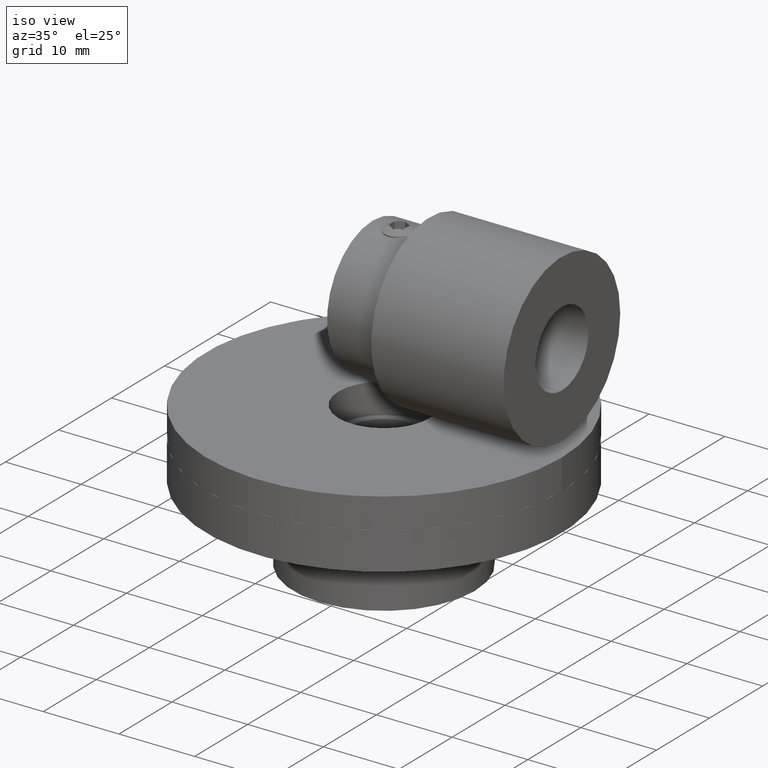
[diagram: clean part render]
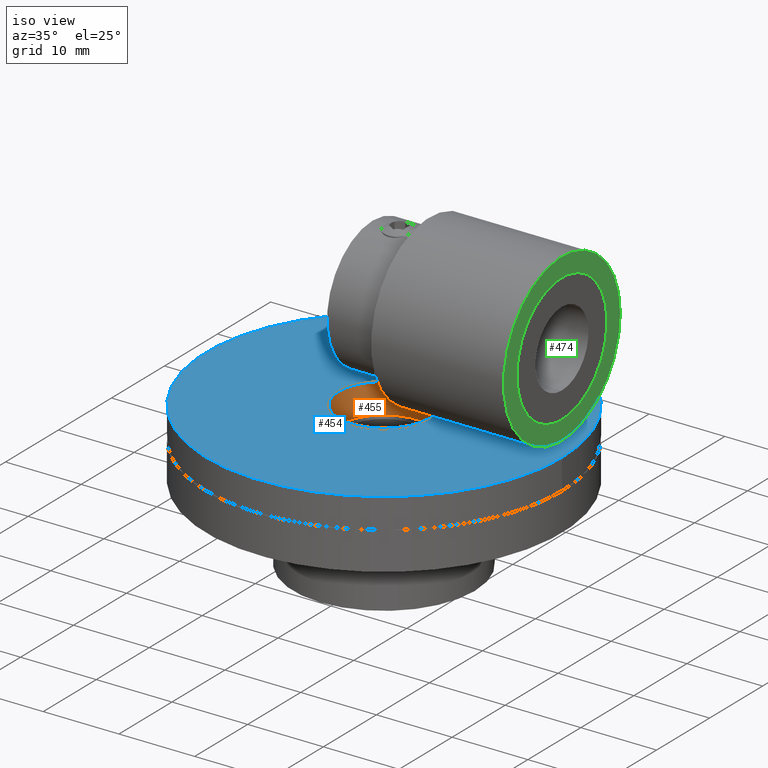
[diagram: same view with three faces highlighted in distinct colors, each labeled with its STEP entity id]
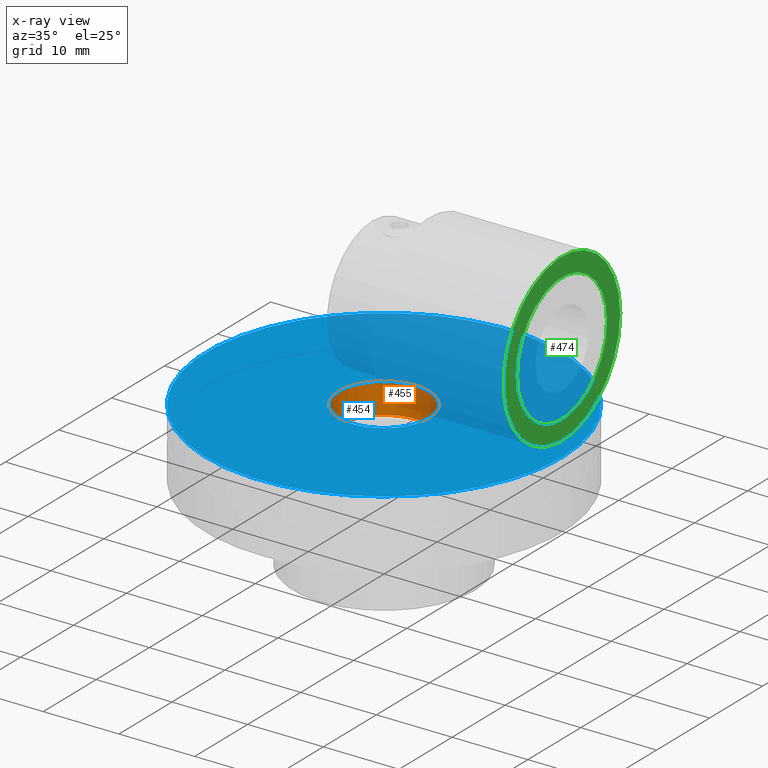
[diagram: x-ray of the same camera — body ghosted, the three highlighted faces saturated]
A machine part, iso view with three faces highlighted in distinct colors.
The next image is the same camera in x-ray (body ghosted, the three faces saturated) — at least one of them is partly hidden behind the body in this view.
Their STEP definitions:

[orange] entity #455 — the highlighted cylindrical surface (bore or boss wall) has radius 6 mm, axis along (-0, 0, -1).
#455 = ADVANCED_FACE( '', ( #540, #541 ), #542, .F. );
#540 = FACE_OUTER_BOUND( '', #724, .T. );
#541 = FACE_OUTER_BOUND( '', #725, .T. );
#542 = CYLINDRICAL_SURFACE( '', #726, 6.00000000000000 );
#724 = EDGE_LOOP( '', ( #912 ) );
#725 = EDGE_LOOP( '', ( #913 ) );
#726 = AXIS2_PLACEMENT_3D( '', #914, #915, #916 );
#912 = ORIENTED_EDGE( '', *, *, #1337, .F. );
#913 = ORIENTED_EDGE( '', *, *, #1336, .T. );
#914 = CARTESIAN_POINT( '', ( 1.73472347597681E-015, 0.000000000000000, 23.0000000000000 ) );
#915 = DIRECTION( '', ( -0.000000000000000, 0.000000000000000, -1.00000000000000 ) );
#916 = DIRECTION( '', ( 1.00000000000000, 0.000000000000000, 0.000000000000000 ) );
#1336 = EDGE_CURVE( '', #1454, #1454, #1455, .T. );
#1337 = EDGE_CURVE( '', #1456, #1456, #1457, .T. );
#1454 = VERTEX_POINT( '', #1654 );
#1455 = CIRCLE( '', #1655, 6.00000000000000 );
#1456 = VERTEX_POINT( '', #1656 );
#1457 = CIRCLE( '', #1657, 6.00000000000000 );
#1654 = CARTESIAN_POINT( '', ( 6.00000000000000, 0.000000000000000, 27.0000000000000 ) );
#1655 = AXIS2_PLACEMENT_3D( '', #2452, #2453, #2454 );
#1656 = CARTESIAN_POINT( '', ( 6.00000000000000, 0.000000000000000, 23.0000000000000 ) );
#1657 = AXIS2_PLACEMENT_3D( '', #2455, #2456, #2457 );
#2452 = CARTESIAN_POINT( '', ( 1.73472347597681E-015, 0.000000000000000, 27.0000000000000 ) );
#2453 = DIRECTION( '', ( 0.000000000000000, 0.000000000000000, 1.00000000000000 ) );
#2454 = DIRECTION( '', ( 1.00000000000000, 0.000000000000000, 0.000000000000000 ) );
#2455 = CARTESIAN_POINT( '', ( 1.73472347597681E-015, 0.000000000000000, 23.0000000000000 ) );
#2456 = DIRECTION( '', ( 0.000000000000000, 0.000000000000000, 1.00000000000000 ) );
#2457 = DIRECTION( '', ( 1.00000000000000, 0.000000000000000, 0.000000000000000 ) );

[blue] entity #454 — the highlighted planar face has unit normal (0, 0, 1).
#454 = ADVANCED_FACE( '', ( #537, #538 ), #539, .T. );
#537 = FACE_OUTER_BOUND( '', #721, .T. );
#538 = FACE_BOUND( '', #722, .T. );
#539 = PLANE( '', #723 );
#721 = EDGE_LOOP( '', ( #907 ) );
#722 = EDGE_LOOP( '', ( #908 ) );
#723 = AXIS2_PLACEMENT_3D( '', #909, #910, #911 );
#907 = ORIENTED_EDGE( '', *, *, #1335, .T. );
#908 = ORIENTED_EDGE( '', *, *, #1336, .F. );
#909 = CARTESIAN_POINT( '', ( 1.73472347597681E-015, 0.000000000000000, 27.0000000000000 ) );
#910 = DIRECTION( '', ( 0.000000000000000, 0.000000000000000, 1.00000000000000 ) );
#911 = DIRECTION( '', ( 1.00000000000000, 0.000000000000000, 0.000000000000000 ) );
#1335 = EDGE_CURVE( '', #1452, #1452, #1453, .T. );
#1336 = EDGE_CURVE( '', #1454, #1454, #1455, .T. );
#1452 = VERTEX_POINT( '', #1652 );
#1453 = CIRCLE( '', #1653, 23.5000000000000 );
#1454 = VERTEX_POINT( '', #1654 );
#1455 = CIRCLE( '', #1655, 6.00000000000000 );
#1652 = CARTESIAN_POINT( '', ( 23.5000000000000, 0.000000000000000, 27.0000000000000 ) );
#1653 = AXIS2_PLACEMENT_3D( '', #2449, #2450, #2451 );
#1654 = CARTESIAN_POINT( '', ( 6.00000000000000, 0.000000000000000, 27.0000000000000 ) );
#1655 = AXIS2_PLACEMENT_3D( '', #2452, #2453, #2454 );
#2449 = CARTESIAN_POINT( '', ( 1.73472347597681E-015, 0.000000000000000, 27.0000000000000 ) );
#2450 = DIRECTION( '', ( 0.000000000000000, 0.000000000000000, 1.00000000000000 ) );
#2451 = DIRECTION( '', ( 1.00000000000000, 0.000000000000000, 0.000000000000000 ) );
#2452 = CARTESIAN_POINT( '', ( 1.73472347597681E-015, 0.000000000000000, 27.0000000000000 ) );
#2453 = DIRECTION( '', ( 0.000000000000000, 0.000000000000000, 1.00000000000000 ) );
#2454 = DIRECTION( '', ( 1.00000000000000, 0.000000000000000, 0.000000000000000 ) );

[green] entity #474 — the highlighted planar face has unit normal (1, 0, 0).
#474 = ADVANCED_FACE( '', ( #605, #606 ), #607, .T. );
#605 = FACE_OUTER_BOUND( '', #789, .T. );
#606 = FACE_BOUND( '', #790, .T. );
#607 = PLANE( '', #791 );
#789 = EDGE_LOOP( '', ( #1015 ) );
#790 = EDGE_LOOP( '', ( #1016 ) );
#791 = AXIS2_PLACEMENT_3D( '', #1017, #1018, #1019 );
#1015 = ORIENTED_EDGE( '', *, *, #1359, .T. );
#1016 = ORIENTED_EDGE( '', *, *, #1360, .F. );
#1017 = CARTESIAN_POINT( '', ( 23.5000000000000, 0.000000000000000, 40.0000000000000 ) );
#1018 = DIRECTION( '', ( 1.00000000000000, 0.000000000000000, 0.000000000000000 ) );
#1019 = DIRECTION( '', ( 0.000000000000000, 1.00000000000000, 0.000000000000000 ) );
#1359 = EDGE_CURVE( '', #1500, #1500, #1501, .T. );
#1360 = EDGE_CURVE( '', #1502, #1502, #1503, .T. );
#1500 = VERTEX_POINT( '', #2128 );
#1501 = CIRCLE( '', #2129, 11.0000000000000 );
#1502 = VERTEX_POINT( '', #2130 );
#1503 = CIRCLE( '', #2131, 8.50000000000000 );
#2128 = CARTESIAN_POINT( '', ( 23.5000000000000, 11.0000000000000, 40.0000000000000 ) );
#2129 = AXIS2_PLACEMENT_3D( '', #2497, #2498, #2499 );
#2130 = CARTESIAN_POINT( '', ( 23.5000000000000, 8.50000000000000, 40.0000000000000 ) );
#2131 = AXIS2_PLACEMENT_3D( '', #2500, #2501, #2502 );
#2497 = CARTESIAN_POINT( '', ( 23.5000000000000, 0.000000000000000, 40.0000000000000 ) );
#2498 = DIRECTION( '', ( 1.00000000000000, 0.000000000000000, 0.000000000000000 ) );
#2499 = DIRECTION( '', ( 0.000000000000000, 1.00000000000000, 0.000000000000000 ) );
#2500 = CARTESIAN_POINT( '', ( 23.5000000000000, 0.000000000000000, 40.0000000000000 ) );
#2501 = DIRECTION( '', ( 1.00000000000000, 0.000000000000000, 0.000000000000000 ) );
#2502 = DIRECTION( '', ( 0.000000000000000, 1.00000000000000, 0.000000000000000 ) );